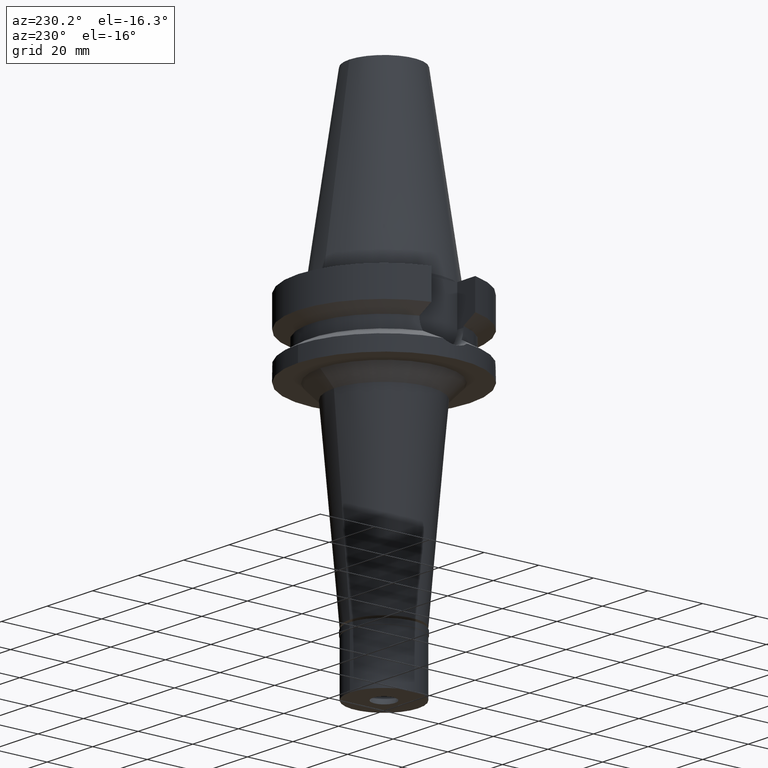
[diagram: clean part render]
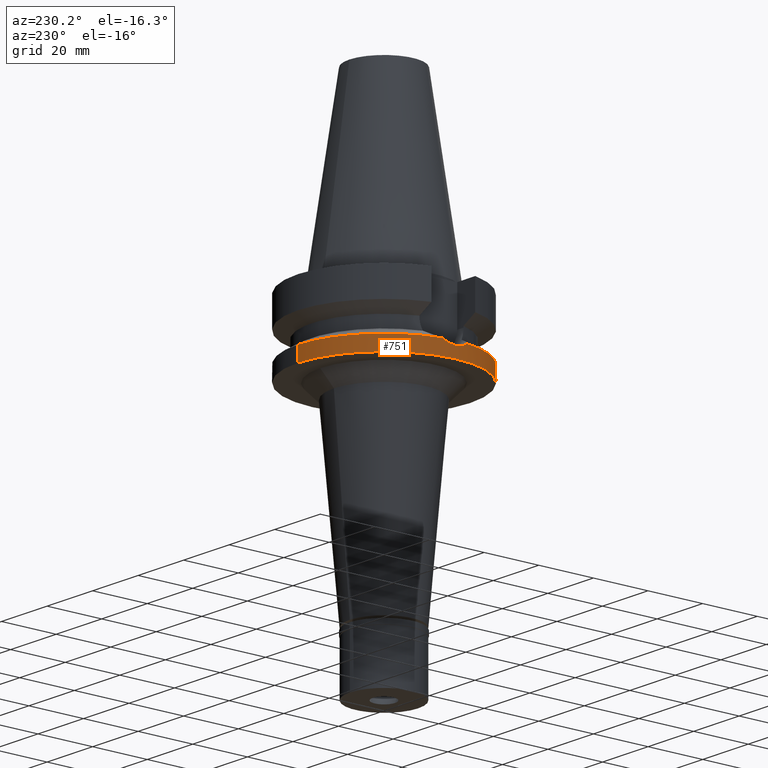
[diagram: same view with one face highlighted and labeled with its STEP entity id]
A machine part, auxiliary view. The second image highlights one B-rep face of the part: STEP entity #751.
In plain terms, the highlighted cylindrical surface (partial cylindrical patch) has radius 31.5 mm, axis along (0, 0, -1).
Its self-contained STEP definition (entity closure, byte-faithful):
#8 = CARTESIAN_POINT ( 'NONE',  ( -31.47056816806593460, -1.371798205040060559, -22.88470967409975998 ) ) ;
#24 = VECTOR ( 'NONE', #772, 1000.000000000000000 ) ;
#28 = VERTEX_POINT ( 'NONE', #725 ) ;
#96 = DIRECTION ( 'NONE',  ( 0.0000000000000000000, 0.0000000000000000000, -1.000000000000000000 ) ) ;
#194 = CARTESIAN_POINT ( 'NONE',  ( -31.17899877608999759, -4.485536235554000051, -21.63449434733000132 ) ) ;
#235 = CARTESIAN_POINT ( 'NONE',  ( -31.41955969787372283, -2.249977568492127045, -22.67921356346679929 ) ) ;
#473 = CARTESIAN_POINT ( 'NONE',  ( -31.49983371806498056, -0.3969849275432809632, -22.99934650678998338 ) ) ;
#488 = CARTESIAN_POINT ( 'NONE',  ( -31.17899877608999759, 4.485536235554000051, -21.63449434733000132 ) ) ;
#559 = EDGE_CURVE ( 'NONE', #1748, #2316, #1329, .T. ) ;
#567 = B_SPLINE_CURVE_WITH_KNOTS ( 'NONE', 3,
 ( #488, #2142, #957, #646, #2528, #1919, #1603, #2791, #1903, #3039, #1446, #2639, #2569, #473, #1429, #8, #2078, #874, #2387, #968, #235, #1367, #2296, #3058, #2167, #1932 ),
 .UNSPECIFIED., .F., .F.,
 ( 4, 2, 2, 1, 1, 2, 2, 2, 2, 2, 1, 1, 2, 2, 4 ),
 ( 0.0000000000000000000, 0.1250000000000029976, 0.1875000000000043854, 0.2187500000000052736, 0.2343750000000058287, 0.2421875000000059952, 0.2500000000000061617, 0.5000000000000054401, 0.6250000000000052180, 0.6875000000000049960, 0.7187500000000046629, 0.7343750000000045519, 0.7421875000000043299, 0.7500000000000042188, 1.000000000000000000 ),
 .UNSPECIFIED. ) ;
#593 = CARTESIAN_POINT ( 'NONE',  ( 0.0000000000000000000, 2.135294158992999721E-14, -27.00000000000000000 ) ) ;
#646 = CARTESIAN_POINT ( 'NONE',  ( -31.33719342388247142, 3.200318897619615299, -22.33920407940999553 ) ) ;
#725 = CARTESIAN_POINT ( 'NONE',  ( 0.0000000000000000000, 31.50000000000000000, -21.63449434733000132 ) ) ;
#750 = CARTESIAN_POINT ( 'NONE',  ( 0.0000000000000000000, -31.50000000000000000, -27.00000000000000000 ) ) ;
#751 = ADVANCED_FACE ( 'NONE', ( #1745 ), #1966, .T. ) ;
#752 = DIRECTION ( 'NONE',  ( 0.0000000000000000000, 0.0000000000000000000, -1.000000000000000000 ) ) ;
#772 = DIRECTION ( 'NONE',  ( 0.0000000000000000000, 1.099151708819000049E-13, -1.000000000000000000 ) ) ;
#874 = CARTESIAN_POINT ( 'NONE',  ( -31.44511396460613639, -1.860301245816448734, -22.78273863314749192 ) ) ;
#931 = AXIS2_PLACEMENT_3D ( 'NONE', #1823, #2836, #1132 ) ;
#934 = CARTESIAN_POINT ( 'NONE',  ( 0.0000000000000000000, 31.50000000000000000, -27.00000000000000000 ) ) ;
#957 = CARTESIAN_POINT ( 'NONE',  ( -31.27846961443794882, 3.743983546131300688, -22.08754853579434041 ) ) ;
#964 = ORIENTED_EDGE ( 'NONE', *, *, #2621, .T. ) ;
#968 = CARTESIAN_POINT ( 'NONE',  ( -31.42474741543221839, -2.177058571076067484, -22.70031563427335541 ) ) ;
#1132 = DIRECTION ( 'NONE',  ( -0.9898094849552905306, 0.1423979757318985240, 0.0000000000000000000 ) ) ;
#1241 = DIRECTION ( 'NONE',  ( 0.0000000000000000000, -1.000000000000000000, 0.0000000000000000000 ) ) ;
#1244 = ORIENTED_EDGE ( 'NONE', *, *, #1310, .T. ) ;
#1250 = CARTESIAN_POINT ( 'NONE',  ( -31.17899877608999759, 4.485536235554000051, -21.63449434733000132 ) ) ;
#1310 = EDGE_CURVE ( 'NONE', #28, #2732, #2951, .T. ) ;
#1329 = LINE ( 'NONE', #2293, #2459 ) ;
#1367 = CARTESIAN_POINT ( 'NONE',  ( -31.41604485789486390, -2.298564670173776747, -22.66490387661607997 ) ) ;
#1429 = CARTESIAN_POINT ( 'NONE',  ( -31.49245606944948150, -0.7860991982204689199, -22.97124303091302622 ) ) ;
#1446 = CARTESIAN_POINT ( 'NONE',  ( -31.41215830074745696, 2.351096289902847580, -22.64905788738899162 ) ) ;
#1455 = CARTESIAN_POINT ( 'NONE',  ( 0.0000000000000000000, -31.50000000000000000, -21.63449434733000132 ) ) ;
#1480 = AXIS2_PLACEMENT_3D ( 'NONE', #2672, #752, #1241 ) ;
#1502 = CARTESIAN_POINT ( 'NONE',  ( 0.0000000000000000000, 31.50000000000000000, -21.63449434733000132 ) ) ;
#1531 = CARTESIAN_POINT ( 'NONE',  ( 0.0000000000000000000, 0.0000000000000000000, -21.63449434733000132 ) ) ;
#1595 = VERTEX_POINT ( 'NONE', #194 ) ;
#1603 = CARTESIAN_POINT ( 'NONE',  ( -31.39044521733802640, 2.626578571194480460, -22.56039104643803128 ) ) ;
#1638 = EDGE_CURVE ( 'NONE', #3102, #28, #1888, .T. ) ;
#1695 = AXIS2_PLACEMENT_3D ( 'NONE', #593, #2259, #2464 ) ;
#1745 = FACE_OUTER_BOUND ( 'NONE', #2531, .T. ) ;
#1748 = VERTEX_POINT ( 'NONE', #1455 ) ;
#1782 = ORIENTED_EDGE ( 'NONE', *, *, #2038, .T. ) ;
#1823 = CARTESIAN_POINT ( 'NONE',  ( 0.0000000000000000000, 0.0000000000000000000, -21.63449434733000132 ) ) ;
#1888 = CIRCLE ( 'NONE', #931, 31.50000000000001421 ) ;
#1903 = CARTESIAN_POINT ( 'NONE',  ( -31.40749760860637352, 2.412424580015216868, -22.63005222543992900 ) ) ;
#1919 = CARTESIAN_POINT ( 'NONE',  ( -31.37907245650115584, 2.757363126058911540, -22.51361630134396918 ) ) ;
#1932 = CARTESIAN_POINT ( 'NONE',  ( -31.17899877608999759, -4.485536235554000051, -21.63449434733000132 ) ) ;
#1950 = CIRCLE ( 'NONE', #1996, 31.50000000000000000 ) ;
#1966 = CYLINDRICAL_SURFACE ( 'NONE', #1480, 31.50000000000000000 ) ;
#1996 = AXIS2_PLACEMENT_3D ( 'NONE', #1531, #96, #2265 ) ;
#2038 = EDGE_CURVE ( 'NONE', #2732, #2316, #2249, .T. ) ;
#2078 = CARTESIAN_POINT ( 'NONE',  ( -31.46146862952803858, -1.567358629209865128, -22.84847756273266839 ) ) ;
#2142 = CARTESIAN_POINT ( 'NONE',  ( -31.23226293288984223, 4.115296649379169835, -21.88293843200632693 ) ) ;
#2144 = EDGE_CURVE ( 'NONE', #3102, #1595, #567, .T. ) ;
#2153 = ORIENTED_EDGE ( 'NONE', *, *, #559, .F. ) ;
#2167 = CARTESIAN_POINT ( 'NONE',  ( -31.28458591552411150, -3.751599172499861190, -22.12699252593688115 ) ) ;
#2249 = CIRCLE ( 'NONE', #1695, 31.50000000000000000 ) ;
#2259 = DIRECTION ( 'NONE',  ( 0.0000000000000000000, 0.0000000000000000000, 1.000000000000000000 ) ) ;
#2265 = DIRECTION ( 'NONE',  ( 0.0000000000000000000, -1.000000000000000000, 0.0000000000000000000 ) ) ;
#2293 = CARTESIAN_POINT ( 'NONE',  ( 0.0000000000000000000, -31.50000000000000000, -21.63449434733000132 ) ) ;
#2296 = CARTESIAN_POINT ( 'NONE',  ( -31.41408065394644211, -2.325228041222548558, -22.65689912745676082 ) ) ;
#2309 = DIRECTION ( 'NONE',  ( 0.0000000000000000000, -1.105773104655000034E-13, -1.000000000000000000 ) ) ;
#2316 = VERTEX_POINT ( 'NONE', #750 ) ;
#2387 = CARTESIAN_POINT ( 'NONE',  ( -31.43626029286638612, -2.006672135012660174, -22.74702249194523063 ) ) ;
#2459 = VECTOR ( 'NONE', #2309, 1000.000000000000000 ) ;
#2464 = DIRECTION ( 'NONE',  ( 0.0000000000000000000, 1.000000000000000000, 0.0000000000000000000 ) ) ;
#2528 = CARTESIAN_POINT ( 'NONE',  ( -31.35500365821769364, 3.021264144781413030, -22.41390211746378114 ) ) ;
#2531 = EDGE_LOOP ( 'NONE', ( #2803, #1244, #1782, #2153, #964, #2585 ) ) ;
#2569 = CARTESIAN_POINT ( 'NONE',  ( -31.50032380699094858, 0.7535289836096168425, -23.00127312585622974 ) ) ;
#2585 = ORIENTED_EDGE ( 'NONE', *, *, #2144, .F. ) ;
#2621 = EDGE_CURVE ( 'NONE', #1748, #1595, #1950, .T. ) ;
#2639 = CARTESIAN_POINT ( 'NONE',  ( -31.47164681449470791, 1.548077469550907637, -22.89150997833644396 ) ) ;
#2672 = CARTESIAN_POINT ( 'NONE',  ( 0.0000000000000000000, 2.135294158992999721E-14, 74.35999999999999943 ) ) ;
#2732 = VERTEX_POINT ( 'NONE', #934 ) ;
#2791 = CARTESIAN_POINT ( 'NONE',  ( -31.40255557128088171, 2.476306052351474385, -22.60989025223762283 ) ) ;
#2803 = ORIENTED_EDGE ( 'NONE', *, *, #1638, .T. ) ;
#2836 = DIRECTION ( 'NONE',  ( 0.0000000000000000000, 0.0000000000000000000, -1.000000000000000000 ) ) ;
#2951 = LINE ( 'NONE', #1502, #24 ) ;
#3039 = CARTESIAN_POINT ( 'NONE',  ( -31.41073716363128909, 2.369955556987379808, -22.64326362460372977 ) ) ;
#3058 = CARTESIAN_POINT ( 'NONE',  ( -31.36242476481839603, -3.016548684995955298, -22.44626900664946945 ) ) ;
#3102 = VERTEX_POINT ( 'NONE', #1250 ) ;